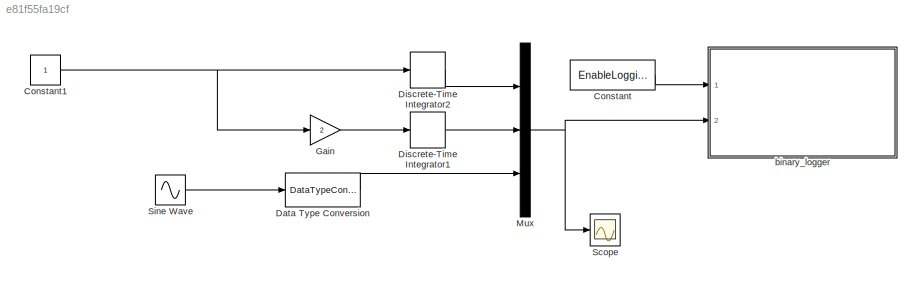
MODEL slx_e81f55fa19cf
KIND model
CONFIG AbsTol = auto
CONFIG EnableMultiTasking = off
CONFIG FixedStep = auto
CONFIG MaxStep = auto
CONFIG MinStep = auto
CONFIG RelTol = 1e-3
CONFIG SampleTimeConstraint = Unconstrained
CONFIG Solver = FixedStepAuto
CONFIG SolverName = FixedStepAuto
CONFIG StartTime = 0.0
CONFIG StopTime = 10.0
BLOCK [Constant] Constant
  OutDataTypeStr = boolean
  SampleTime = -1
  Value = EnableLogging
BLOCK [Constant] Constant1
  OutDataTypeStr = single
BLOCK [DataTypeConversion] Data Type Conversion
  OutDataTypeStr = single
  RndMeth = Floor
  SaturateOnIntegerOverflow = off
BLOCK [DiscreteIntegrator] Discrete-Time Integrator1
  ICPrevOutput = DiscIntNeverNeededParam
  ICPrevScaledInput = DiscIntNeverNeededParam
  InitialConditionSetting = State (most efficient)
  Ports = [1, 1]
  SampleTime = -1
BLOCK [DiscreteIntegrator] Discrete-Time Integrator2
  ICPrevOutput = DiscIntNeverNeededParam
  ICPrevScaledInput = DiscIntNeverNeededParam
  InitialConditionSetting = State (most efficient)
  Ports = [1, 1]
  SampleTime = -1
BLOCK [Gain] Gain
  Gain = 2
  ParamDataTypeStr = Inherit: Inherit via internal rule
  SaturateOnIntegerOverflow = off
BLOCK [Mux] Mux
  DisplayOption = bar
  Inputs = 3
  Ports = [3, 1]
BLOCK [Scope] Scope
  NumInputPorts = 1
  Ports = [1]
  ScopeSpecificationString = Simulink.scopes.TimeScopeBlockCfg('CurrentConfiguration', extmgr.ConfigurationSet(extmgr.Configuration('Core','General UI',true),extmgr.Configuration('Core','Source UI',true),extmgr.Configuration('Sources','WiredSimulink',true),extmgr.Configuration('Visuals','Time Domain',true,'PlotType','Stairs','SerializedDisplays',{struct('MinYLimReal','-3.62491','MaxYLimReal','22.62499','YLabelReal','','MinYLi...<+1569ch>
BLOCK [Sin] Sine Wave
  Ports = [0, 1]
  SampleTime = 0.1
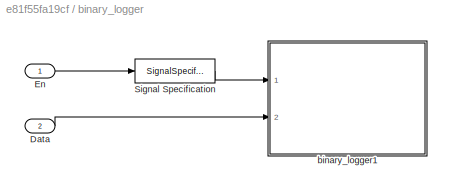
BLOCK [SubSystem] binary_logger
  Ports = [2]
  RequestExecContextInheritance = off
  Variant = off
BLOCK [Inport] binary_logger/Data
  IconDisplay = Port number
  Port = 2
BLOCK [Inport] binary_logger/En
  IconDisplay = Port number
BLOCK [SignalSpecification] binary_logger/Signal Specification
  OutDataTypeStr = boolean
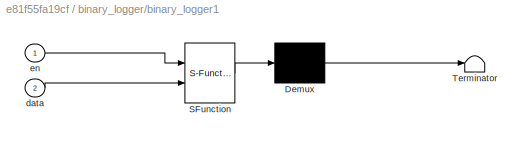
BLOCK [SubSystem] binary_logger/binary_logger1
  ErrorFcn = Stateflow.Translate.translate
  PermitHierarchicalResolution = ExplicitOnly
  Ports = [2]
  RequestExecContextInheritance = off
  SFBlockType = MATLAB Function
  TreatAsAtomicUnit = on
  Variant = off
BLOCK [Demux] binary_logger/binary_logger1/ Demux 
  Outputs = 1
  Ports = [1, 1]
BLOCK [S-Function] binary_logger/binary_logger1/ SFunction 
  EnableBusSupport = on
  FunctionName = sf_sfun
  Parameters = cacheflag,logname,numRecs
  PortCounts = [2 1]
  Ports = [2, 1]
  SFcnIsStateOwnerBlock = off
  SFunctionDeploymentMode = off
  Tag = Stateflow S-Function LoggingModel 3
BLOCK [Terminator] binary_logger/binary_logger1/ Terminator 
BLOCK [Inport] binary_logger/binary_logger1/data
  IconDisplay = Port number
  Port = 2
BLOCK [Inport] binary_logger/binary_logger1/en
  IconDisplay = Port number
NET Constant1:1 -> Discrete-Time Integrator2:1, Gain:1
LINE Constant:1 -> binary_logger:1
LINE Data Type Conversion:1 -> Mux:3
LINE Discrete-Time Integrator1:1 -> Mux:2
LINE Discrete-Time Integrator2:1 -> Mux:1
LINE Gain:1 -> Discrete-Time Integrator1:1
NET Mux:1 -> Scope:1, binary_logger:2
LINE Sine Wave:1 -> Data Type Conversion:1
LINE binary_logger/Data:1 -> binary_logger/binary_logger1:2
LINE binary_logger/En:1 -> binary_logger/Signal Specification:1
LINE binary_logger/Signal Specification:1 -> binary_logger/binary_logger1:1
note: NET lines group one-source signal fan-out (src -> all destinations, sorted); 1:1 wires keep LINE
CHART binary_logger/binary_logger1 states=1 transitions=1
  STATE_LABEL 'eML_blk_kernel()'
  STATE_LABEL 'SCRIPT:\n%% Binary Logger\n% Note: All data needs to be of the same type (e.g. double)\n% Header information format:\n%           String "MWLOGV##"\n%           Time/Date 4 bytes (time())\n%           Number of Signals per record Logged 1 byte (256 max)\n%           Data Type of Signals Logged  1 byte (1-10)\n%           Number of bytes per record 2 bytes (65535 max)\n% This does NOT include the number of ...<+3608ch>'
